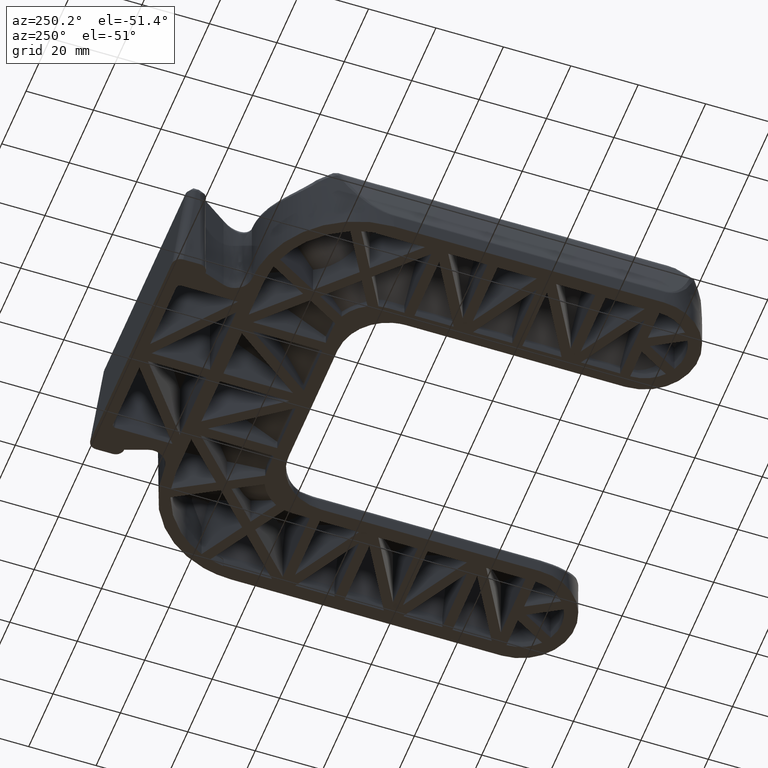
[diagram: clean part render]
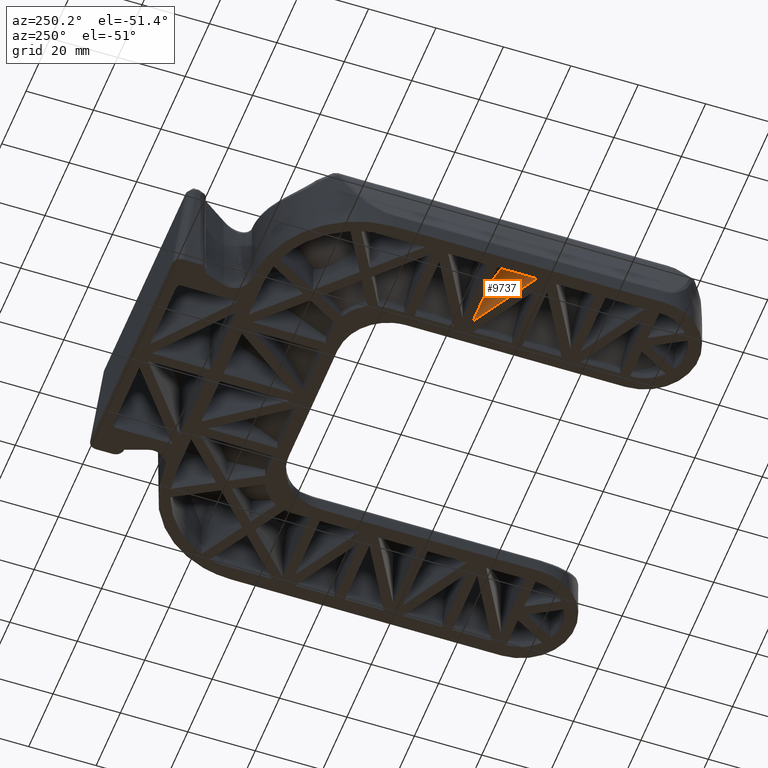
[diagram: same view with one face highlighted and labeled with its STEP entity id]
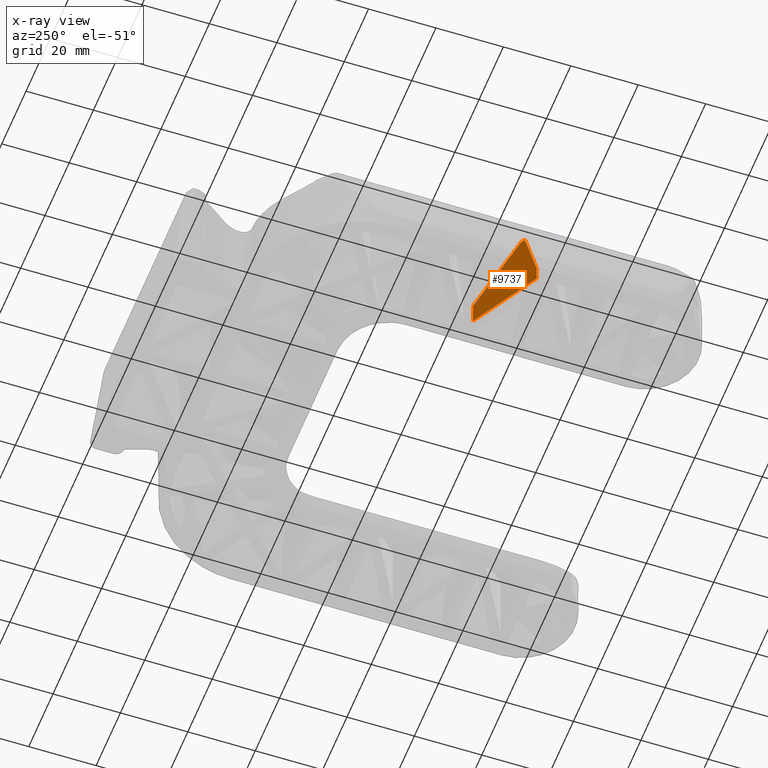
[diagram: x-ray of the same camera — body ghosted, the highlighted face saturated]
A machine part, auxiliary view. The second image highlights one B-rep face of the part: STEP entity #9737.
The next image is the same camera in x-ray: the body ghosted, the highlighted face saturated — about 0% of this face is hidden behind the body in this view.
In plain terms, the highlighted face is a freeform B-spline surface patch.
Its self-contained STEP definition (entity closure, byte-faithful):
#3171=CARTESIAN_POINT('',(-42.648346655613047,-86.0,6.661874774151161));
#3172=VERTEX_POINT('',#3171);
#3178=CARTESIAN_POINT('',(-57.739432178553223,-94.623477441680805,20.731429712811451));
#3179=VERTEX_POINT('',#3178);
#3180=CARTESIAN_POINT('',(-42.648346655613047,-86.0,6.661874774151161));
#3181=CARTESIAN_POINT('',(-57.739432178553223,-94.623477441680805,20.731429712811451));
#3182=QUASI_UNIFORM_CURVE('',1,(#3180,#3181),.UNSPECIFIED.,.F.,.U.);
#3183=EDGE_CURVE('',#3172,#3179,#3182,.T.);
#3208=CARTESIAN_POINT('',(-59.395930128661817,-95.570047698885887,20.224039665201001));
#3209=VERTEX_POINT('',#3208);
#3210=CARTESIAN_POINT('',(-59.395930128661817,-95.570047698885887,20.224039665201001));
#3211=CARTESIAN_POINT('',(-59.363984367576492,-95.551792978265738,20.364014122613408));
#3212=CARTESIAN_POINT('',(-59.260190393913717,-95.492482136172740,20.579849861202760));
#3213=CARTESIAN_POINT('',(-59.037103611333293,-95.365003974698084,20.802553599301909));
#3214=CARTESIAN_POINT('',(-58.641495775127261,-95.138942354009089,21.030459866578550));
#3215=CARTESIAN_POINT('',(-58.151640120351409,-94.859024836994280,21.024358130489919));
#3216=CARTESIAN_POINT('',(-57.820669020525052,-94.669898494236122,20.807188959506810));
#3217=CARTESIAN_POINT('',(-57.739432178553223,-94.623477441680805,20.731429712811451));
#3218=B_SPLINE_CURVE_WITH_KNOTS('',3,(#3210,#3211,#3212,#3213,#3214,#3215,#3216,#3217),.UNSPECIFIED.,.F.,.U.,(4,1,1,1,1,4),(-0.000009486956160,0.433401240764539,0.722387679828116,1.011383309646338,1.950503780191808,2.311689595163278),.UNSPECIFIED.);
#3219=EDGE_CURVE('',#3209,#3179,#3218,.T.);
#3256=CARTESIAN_POINT('',(-63.000000000000007,-97.629516196793389,4.546154001710390));
#3257=VERTEX_POINT('',#3256);
#3258=CARTESIAN_POINT('',(-59.395930128661817,-95.570047698885887,20.224039665201001));
#3259=CARTESIAN_POINT('',(-63.000000000000007,-97.629516196793389,4.546154001710390));
#3260=QUASI_UNIFORM_CURVE('',1,(#3258,#3259),.UNSPECIFIED.,.F.,.U.);
#3261=EDGE_CURVE('',#3209,#3257,#3260,.T.);
#9681=CARTESIAN_POINT('',(-63.000000000000007,-97.629516196793276,0.0));
#9682=VERTEX_POINT('',#9681);
#9683=CARTESIAN_POINT('',(-63.000000000000007,-97.629516196793389,4.546154001710390));
#9684=CARTESIAN_POINT('',(-63.000000000000007,-97.629516196793276,0.0));
#9685=QUASI_UNIFORM_CURVE('',1,(#9683,#9684),.UNSPECIFIED.,.F.,.U.);
#9686=EDGE_CURVE('',#3257,#9682,#9685,.T.);
#9702=CARTESIAN_POINT('',(-42.648346655611903,-86.0,0.0));
#9703=VERTEX_POINT('',#9702);
#9709=CARTESIAN_POINT('',(-42.648346655613047,-86.0,6.661874774151161));
#9710=CARTESIAN_POINT('',(-42.648346655611903,-86.0,0.0));
#9711=QUASI_UNIFORM_CURVE('',1,(#9709,#9710),.UNSPECIFIED.,.F.,.U.);
#9712=EDGE_CURVE('',#3172,#9703,#9711,.T.);
#9720=CARTESIAN_POINT('',(-64.016565045106773,-98.210410508282891,-1.048949951912895));
#9721=CARTESIAN_POINT('',(-41.631781064631262,-85.419105376582550,-1.048949951912895));
#9722=CARTESIAN_POINT('',(-64.016565045106773,-98.210410508282891,22.048950367294442));
#9723=CARTESIAN_POINT('',(-41.631781064631262,-85.419105376582550,22.048950367294442));
#9724=B_SPLINE_SURFACE_WITH_KNOTS('',1,1,((#9720,#9722),(#9721,#9723)),.UNSPECIFIED.,.F.,.F.,.U.,(2,2),(2,2),(0.0,25.781699727225440),(0.0,23.097900319207341),.UNSPECIFIED.);
#9725=ORIENTED_EDGE('',*,*,#9686,.F.);
#9726=ORIENTED_EDGE('',*,*,#3261,.F.);
#9727=ORIENTED_EDGE('',*,*,#3219,.T.);
#9728=ORIENTED_EDGE('',*,*,#3183,.F.);
#9729=ORIENTED_EDGE('',*,*,#9712,.T.);
#9730=CARTESIAN_POINT('',(-42.648346655611903,-86.0,0.0));
#9731=CARTESIAN_POINT('',(-63.000000000000007,-97.629516196793276,0.0));
#9732=QUASI_UNIFORM_CURVE('',1,(#9730,#9731),.UNSPECIFIED.,.F.,.U.);
#9733=EDGE_CURVE('',#9703,#9682,#9732,.T.);
#9734=ORIENTED_EDGE('',*,*,#9733,.T.);
#9735=EDGE_LOOP('',(#9725,#9726,#9727,#9728,#9729,#9734));
#9736=FACE_OUTER_BOUND('',#9735,.T.);
#9737=ADVANCED_FACE('',(#9736),#9724,.F.);